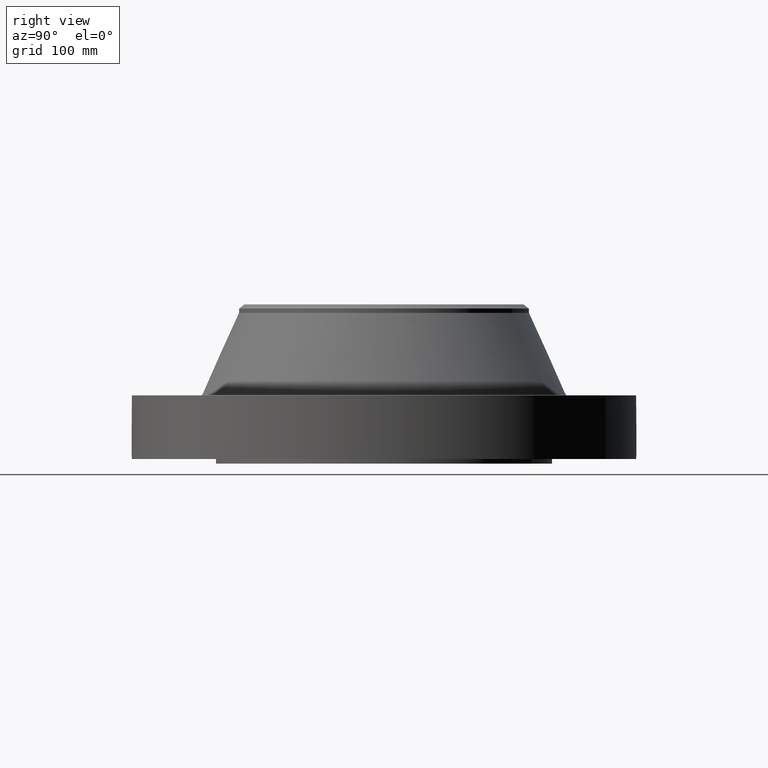
[diagram: clean part render]
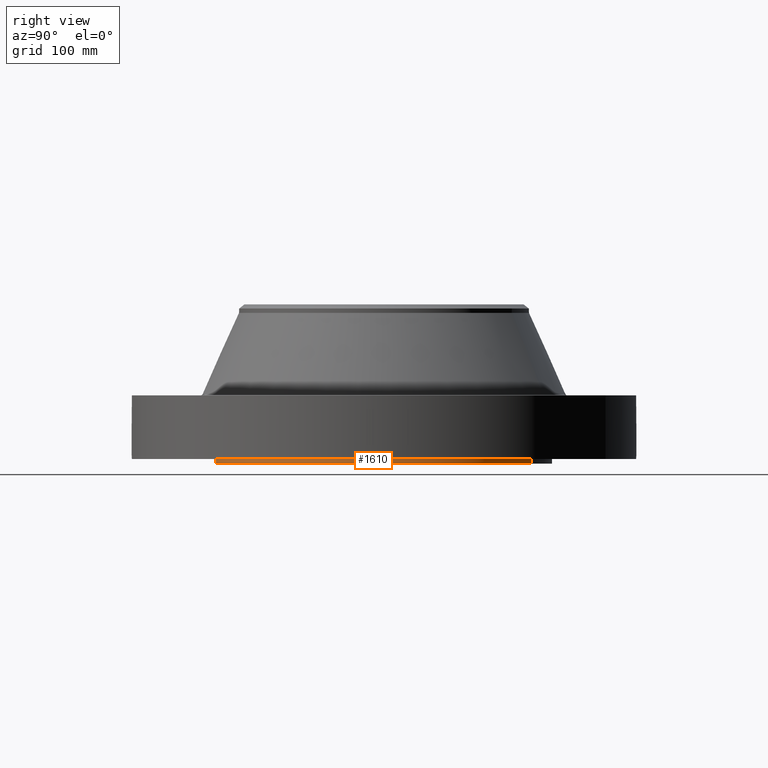
[diagram: same view with one face highlighted and labeled with its STEP entity id]
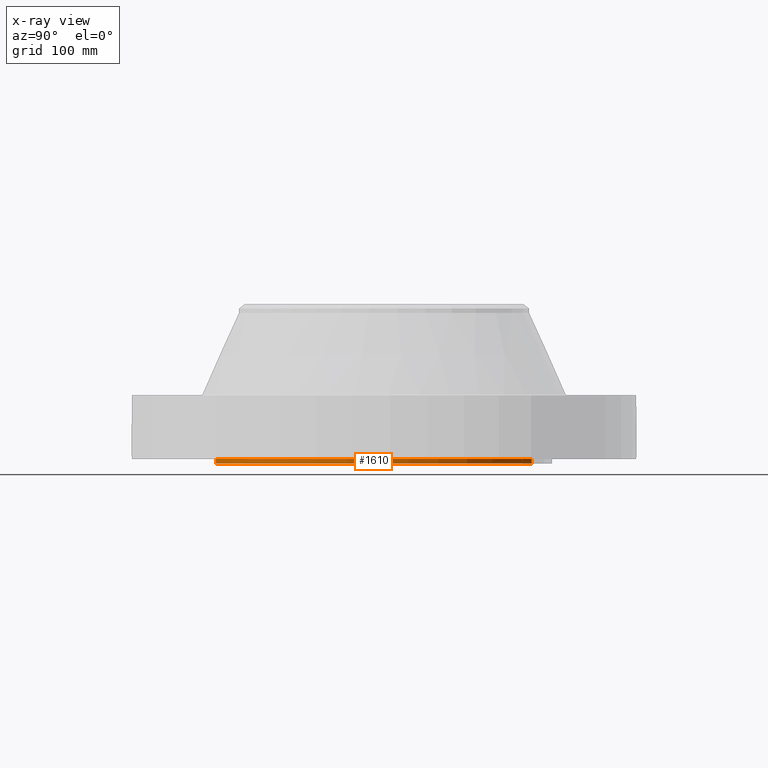
[diagram: x-ray of the same camera — body ghosted, the highlighted face saturated]
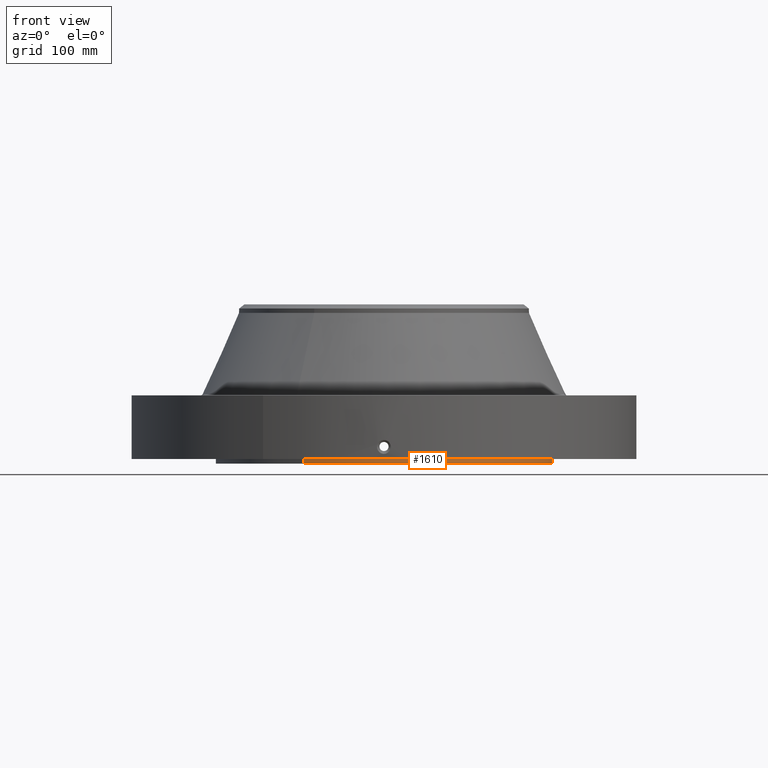
[diagram: same view with one face highlighted and labeled with its STEP entity id]
A machine part, right view. The second image highlights one B-rep face of the part: STEP entity #1610.
The next image is the same camera in x-ray: the body ghosted, the highlighted face saturated — about 0% of this face is hidden behind the body in this view.
A second angle (front view) of the same face is appended — the face is thin or edge-on in the first view.
In plain terms, the highlighted cylindrical surface (partial cylindrical patch) has radius 234.95 mm, axis along (0, 0, -1).
Its self-contained STEP definition (entity closure, byte-faithful):
#254=AXIS2_PLACEMENT_3D('Circle Axis2P3D',#252,#253,$) ;
#1583=AXIS2_PLACEMENT_3D('Cylinder Axis2P3D',#1580,#1581,#1582) ;
#1587=AXIS2_PLACEMENT_3D('Circle Axis2P3D',#1585,#1586,$) ;
#252=CARTESIAN_POINT('Axis2P3D Location',(0.,0.,0.250000000001)) ;
#256=CARTESIAN_POINT('Vertex',(4.43468623211,8.11763869752,0.250000000001)) ;
#258=CARTESIAN_POINT('Vertex',(-4.43468623211,-8.11763869752,0.250000000001)) ;
#1580=CARTESIAN_POINT('Axis2P3D Location',(0.,0.,4.37500000002)) ;
#1585=CARTESIAN_POINT('Axis2P3D Location',(0.,0.,1.1189649382E-015)) ;
#1589=CARTESIAN_POINT('Vertex',(4.43468623211,8.11763869752,5.59482469102E-016)) ;
#1591=CARTESIAN_POINT('Vertex',(-4.43468623211,-8.11763869752,5.59482469102E-016)) ;
#1594=CARTESIAN_POINT('Line Origine',(4.43468623211,8.11763869752,0.125000000001)) ;
#1599=CARTESIAN_POINT('Line Origine',(-4.43468623211,-8.11763869752,0.125000000001)) ;
#253=DIRECTION('Axis2P3D Direction',(0.,0.,-0.0393700787402)) ;
#1581=DIRECTION('Axis2P3D Direction',(0.,0.,-0.0393700787402)) ;
#1582=DIRECTION('Axis2P3D XDirection',(-0.0188750212049,-0.0345504945626,0.)) ;
#1586=DIRECTION('Axis2P3D Direction',(0.,0.,-0.0393700787402)) ;
#1595=DIRECTION('Vector Direction',(0.,0.,-0.0393700787402)) ;
#1600=DIRECTION('Vector Direction',(0.,0.,-0.0393700787402)) ;
#1596=VECTOR('Line Direction',#1595,0.0393700787402) ;
#1601=VECTOR('Line Direction',#1600,0.0393700787402) ;
#1605=ORIENTED_EDGE('',*,*,#1593,.F.) ;
#1606=ORIENTED_EDGE('',*,*,#1598,.T.) ;
#1607=ORIENTED_EDGE('',*,*,#260,.T.) ;
#1608=ORIENTED_EDGE('',*,*,#1603,.F.) ;
#1610=ADVANCED_FACE('PartBody',(#1609),#1584,.T.) ;
#255=CIRCLE('generated circle',#254,9.25000000004) ;
#1588=CIRCLE('generated circle',#1587,9.25000000004) ;
#1584=CYLINDRICAL_SURFACE('generated cylinder',#1583,9.25000000004) ;
#260=EDGE_CURVE('',#257,#259,#255,.T.) ;
#1593=EDGE_CURVE('',#1590,#1592,#1588,.T.) ;
#1598=EDGE_CURVE('',#1590,#257,#1597,.F.) ;
#1603=EDGE_CURVE('',#1592,#259,#1602,.F.) ;
#1604=EDGE_LOOP('',(#1605,#1606,#1607,#1608)) ;
#1609=FACE_OUTER_BOUND('',#1604,.T.) ;
#1597=LINE('Line',#1594,#1596) ;
#1602=LINE('Line',#1599,#1601) ;
#257=VERTEX_POINT('',#256) ;
#259=VERTEX_POINT('',#258) ;
#1590=VERTEX_POINT('',#1589) ;
#1592=VERTEX_POINT('',#1591) ;